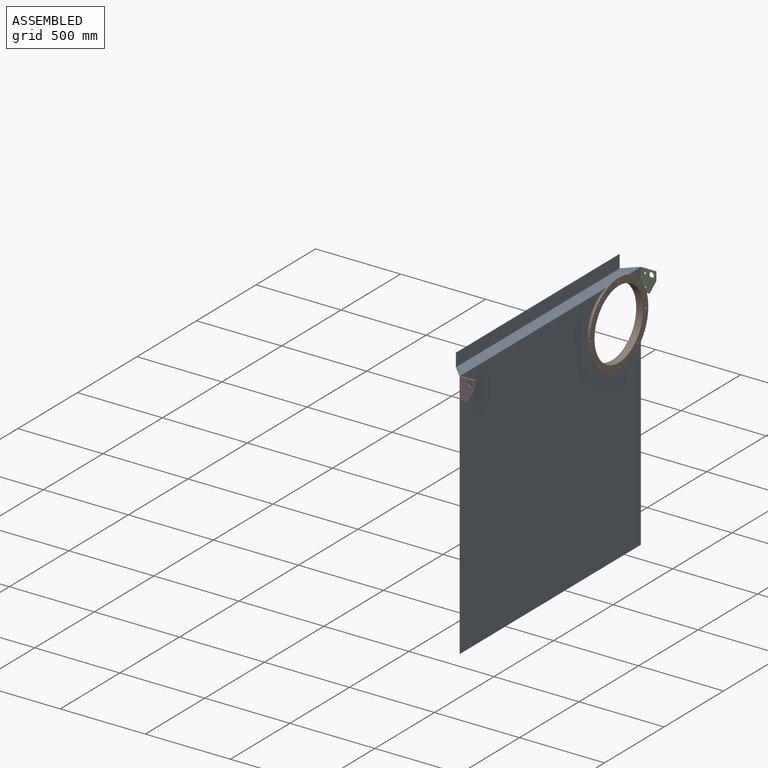
[diagram: assembled view]
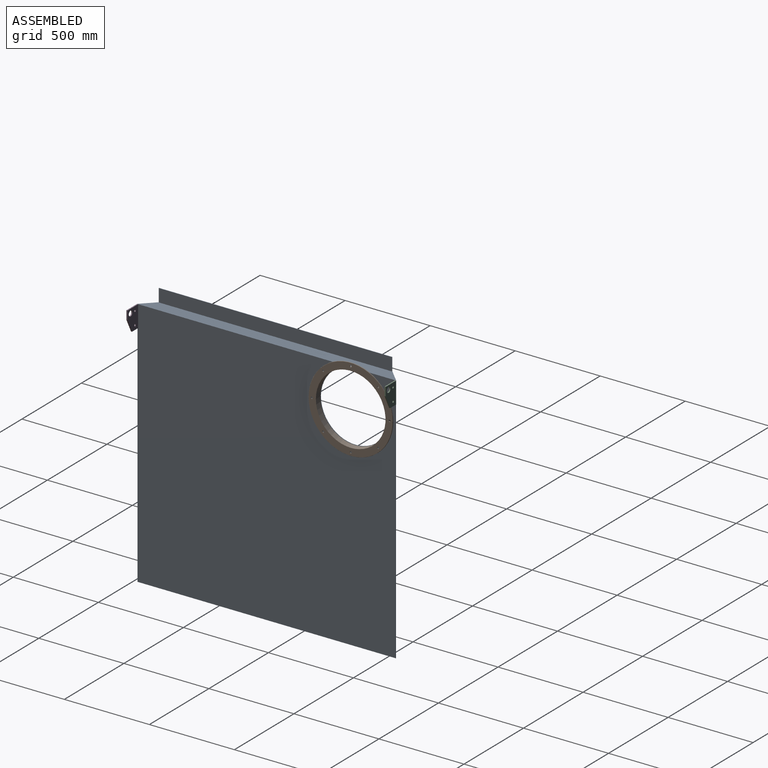
[diagram: assembled view, second angle]
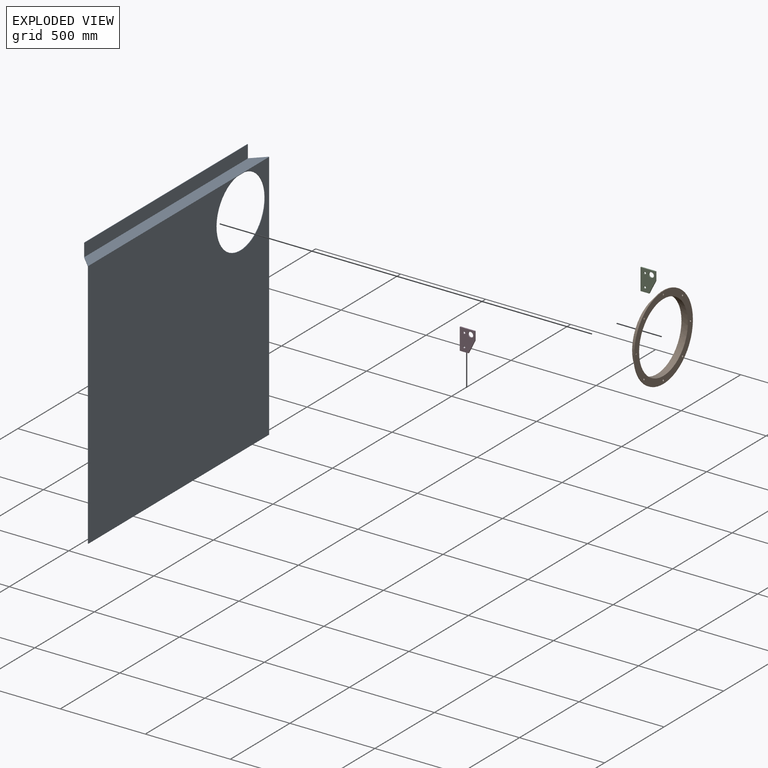
[diagram: exploded view]
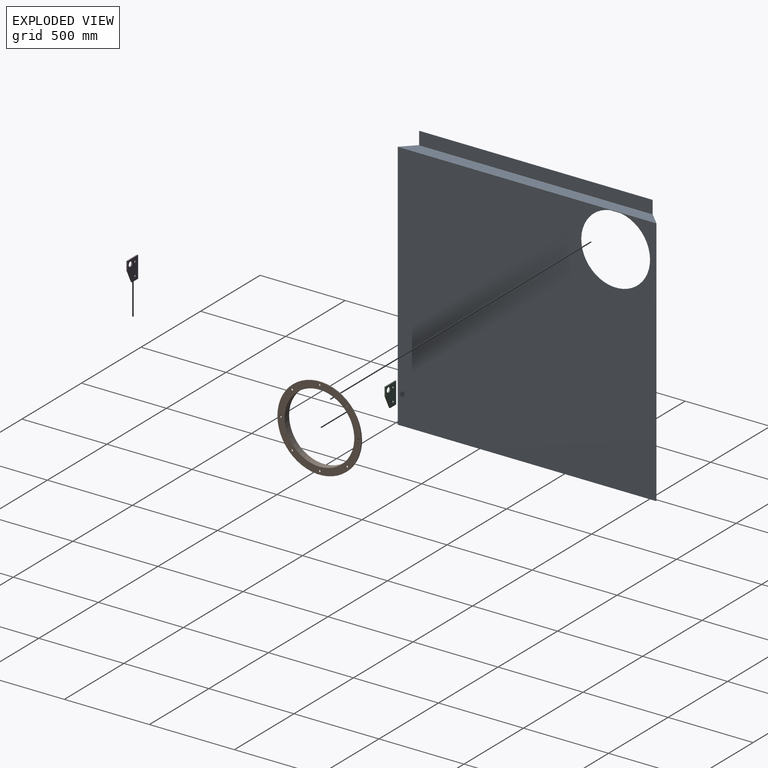
[diagram: exploded view, second angle]
ASSEMBLY  parts=4 mates=3
PART A: 17 faces, bbox 76.2x1518.7x1552.8 mm
  f0: plane 1371.6x76.2mm, normal (1,0,0), area 104515.9mm2, adj f5,f6,f14,f15
  f1: plane 1518.69x1476.62mm, normal (1,0,0), area 2112916mm2, adj f4,f5,f8,f10,f11,f12
  f2: plane 70.89x70.89mm, normal (-0.71,0.71,0), area 266.3mm2, adj f5,f8,f11,f16
  f3: plane 70.89x70.89mm, normal (-0.71,-0.71,0), area 266.3mm2, adj f5,f8,f10,f13
  f4: plane 1518.69x2.66mm, normal (0,0,-1), area 4034.9mm2, adj f1,f9,f10,f11
  f5: plane 1518.69x73.54mm, normal (0,0,1), area 106664.1mm2, adj f0,f1,f2,f3,f10,f11,f13,f16
  f6: plane 1371.6x2.66mm, normal (0,0,1), area 3644.1mm2, adj f0,f7,f14,f15
  f7: plane 1371.6x78.86mm, normal (-1,0,0), area 108160mm2, adj f6,f8,f14,f15
  f8: plane 1518.69x76.2mm, normal (0,0,-1), area 106447.4mm2, adj f1,f2,f3,f7,f9,f12,f13,f14
  f9: plane 1518.69x1473.96mm, normal (-1,0,0), area 2108881.1mm2, adj f4,f8,f10,f11,f12
  f10: plane 1476.62x2.66mm, normal (0,-1,0), area 3923.1mm2, adj f1,f3,f4,f5,f9
  f11: plane 1476.62x2.66mm, normal (0,1,0), area 3923.1mm2, adj f1,f2,f4,f5,f9
  f12: cylinder r=203.2mm len=406.4mm, axis (1,0,0), area 3217.3mm2, adj f1,f8,f9
  f13: plane 2.66x2.66mm, normal (-1,0,0), area 7.1mm2, adj f3,f5,f8,f14
  f14: plane 78.86x2.66mm, normal (0,-1,0), area 209.5mm2, adj f0,f6,f7,f8,f13
  f15: plane 78.86x2.66mm, normal (0,1,0), area 209.5mm2, adj f0,f6,f7,f8,f16
  f16: plane 2.66x2.66mm, normal (-1,0,0), area 7.1mm2, adj f2,f5,f8,f15
PART B: 19 faces, bbox 536.1x38.1x536.1 mm
  f0: cylinder r=5.56mm len=11.11mm, axis (0,1,0), area 166.3mm2, adj f16,f18
  f1: cylinder r=5.56mm len=11.11mm, axis (0,1,0), area 166.3mm2, adj f16,f18
  f2: cylinder r=5.56mm len=11.11mm, axis (0,1,0), area 166.3mm2, adj f16,f18
  f3: cylinder r=5.56mm len=11.11mm, axis (0,1,0), area 166.3mm2, adj f16,f18
  f4: cylinder r=5.56mm len=11.11mm, axis (0,1,0), area 166.3mm2, adj f16,f18
  f5: cylinder r=5.56mm len=11.11mm, axis (0,1,0), area 166.3mm2, adj f16,f18
  f6: cylinder r=5.56mm len=11.11mm, axis (0,1,0), area 166.3mm2, adj f16,f18
  f7: cylinder r=5.56mm len=11.11mm, axis (0,1,0), area 166.3mm2, adj f16,f18
  f8: torus R=210.34mm, axis (0,-1,0), area 1643.9mm2, adj f14,f16
  f9: torus R=205.58mm, axis (0,-1,0), area 1606.6mm2, adj f13,f17
  f10: torus R=208.76mm, axis (0,-1,0), area 1639.4mm2, adj f14,f17
  f11: torus R=246.86mm, axis (0,-1,0), area 1937.8mm2, adj f15,f16
  f12: torus R=246.86mm, axis (0,1,0), area 1937.8mm2, adj f15,f18
  f13: cylinder r=204.79mm len=409.58mm, axis (0,1,0), area 48002.6mm2, adj f9,f18
  f14: cylinder r=209.55mm len=419.1mm, axis (0,1,0), area 41803.4mm2, adj f8,f10
  f15: cylinder r=247.65mm len=495.3mm, axis (0,1,0), area 4940.4mm2, adj f11,f12
  f16: plane 493.71x493.71mm, normal (0,1,0), area 51668.3mm2, adj f0,f1,f2,f3,f4,f5,f6,f7
  f17: plane 417.51x417.51mm, normal (0,1,0), area 4132.8mm2, adj f9,f10
  f18: plane 493.71x493.71mm, normal (0,-1,0), area 58914.6mm2, adj f0,f1,f2,f3,f4,f5,f6,f7
PART C: 10 faces, bbox 6.4x88.9x127 mm
  f0: plane 127x6.35mm, normal (0,1,0), area 806.5mm2, adj f1,f7,f8,f9
  f1: plane 50.8x6.35mm, normal (0,0,-1), area 322.6mm2, adj f0,f2,f8,f9
  f2: plane 76.2x38.1mm, normal (0,-0.89,-0.45), area 541mm2, adj f1,f3,f8,f9
  f3: plane 50.8x6.35mm, normal (0,-1,0), area 322.6mm2, adj f2,f7,f8,f9
  f4: cylinder r=6.35mm len=12.7mm, axis (-1,0,0), area 253.4mm2, adj f8,f9
  f5: cylinder r=6.35mm len=12.7mm, axis (-1,0,0), area 253.4mm2, adj f8,f9
  f6: cylinder r=15.08mm len=30.16mm, axis (-1,0,0), area 601.7mm2, adj f8,f9
  f7: plane 88.9x6.35mm, normal (0,0,1), area 564.5mm2, adj f0,f3,f8,f9
  f8: plane 127x88.9mm, normal (1,0,0), area 8870.8mm2, adj f0,f1,f2,f3,f4,f5,f6,f7
  f9: plane 127x88.9mm, normal (-1,0,0), area 8870.8mm2, adj f0,f1,f2,f3,f4,f5,f6,f7
PART D: same geometry as C
PLACE A t=(691.51,1820.15,-366.86)mm
PLACE B rot(axis=(0.58,-0.58,0.58),120deg) t=(1795.62,2340.85,3392.34)mm
PLACE C rot(axis=(0,0,1),90deg) t=(996.31,3642.6,-366.86)mm
PLACE D rot(axis=(0,0,1),90deg) t=(996.31,2124.95,-366.86)mm
MATE fastened B.f8 <-> A.f12  axis (-1,0,0) through (1758.31,2340.85,3392.34)mm
MATE fastened C.f7 <-> A.f5  axis (0,0,1) through (1758.31,2582.15,3595.54)mm
MATE fastened D.f7 <-> A.f5  axis (0,0,1) through (1758.31,1058.15,3595.54)mm
